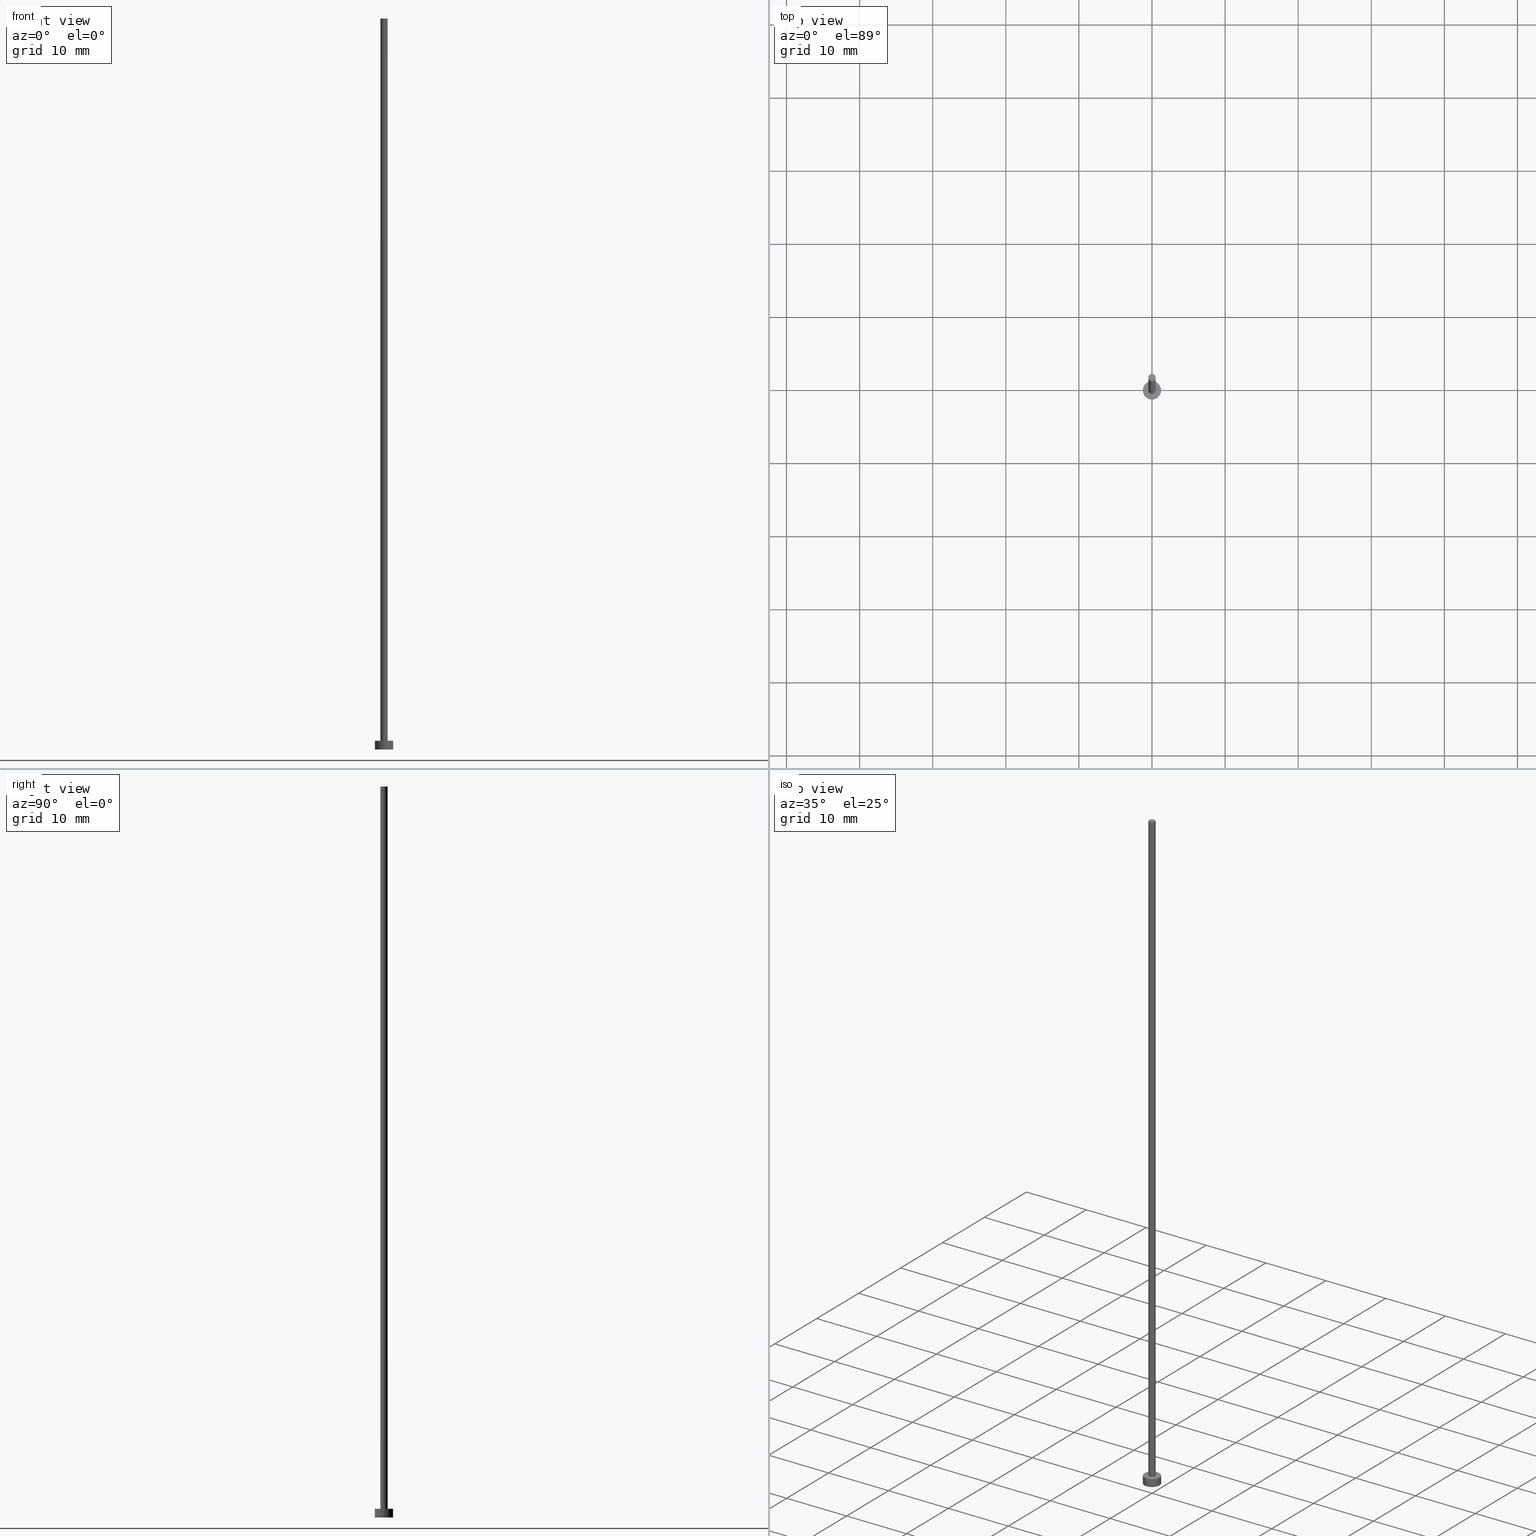
[diagram: canonical four-view strip — front | top / right | iso, engineering-drawing reading convention]
A machine part, canonical four-view strip (front | top / right | iso — engineering-drawing reading convention). The complete STEP part file that produces these views, byte-faithful:
ISO-10303-21;
HEADER;
FILE_DESCRIPTION (( 'STEP AP203' ),
    '1' );
FILE_NAME ('36e0.STEP',
    '2024-10-18T10:26:45',
    ( '' ),
    ( '' ),
    'SwSTEP 2.0',
    'SolidWorks 2019',
    '' );
FILE_SCHEMA (( 'CONFIG_CONTROL_DESIGN' ));
ENDSEC;

DATA;
#1 = PRODUCT_DEFINITION_FORMATION_WITH_SPECIFIED_SOURCE ( 'LIBOVOLN�', '', #137, .NOT_KNOWN. ) ;
#2 = CARTESIAN_POINT ( 'NONE',  ( 0.000000000000000000, 0.000000000000000000, 1.199999999999999956 ) ) ;
#3 = LINE ( 'NONE', #148, #128 ) ;
#4 = FACE_BOUND ( 'NONE', #58, .T. ) ;
#5 = CARTESIAN_POINT ( 'NONE',  ( 1.250000000000000000, 1.530808498934191571E-16, 0.000000000000000000 ) ) ;
#6 = EDGE_CURVE ( 'NONE', #139, #159, #33, .T. ) ;
#7 = VERTEX_POINT ( 'NONE', #100 ) ;
#8 = VECTOR ( 'NONE', #64, 1000.000000000000000 ) ;
#9 = PERSON_AND_ORGANIZATION ( #147, #87 ) ;
#10 = COORDINATED_UNIVERSAL_TIME_OFFSET ( 1, 0, .AHEAD. ) ;
#11 = ORIENTED_EDGE ( 'NONE', *, *, #22, .F. ) ;
#12 = PLANE ( 'NONE',  #86 ) ;
#13 = ADVANCED_FACE ( 'NONE', ( #199 ), #12, .T. ) ;
#14 = CARTESIAN_POINT ( 'NONE',  ( 0.000000000000000000, 0.000000000000000000, 0.000000000000000000 ) ) ;
#15 = DIRECTION ( 'NONE',  ( -0.000000000000000000, -0.000000000000000000, -1.000000000000000000 ) ) ;
#16 = APPROVAL ( #249, 'NEUR�EN�' ) ;
#17 = ORIENTED_EDGE ( 'NONE', *, *, #110, .T. ) ;
#18 = AXIS2_PLACEMENT_3D ( 'NONE', #179, #200, #253 ) ;
#19 = CC_DESIGN_APPROVAL ( #121, ( #68 ) ) ;
#20 = CARTESIAN_POINT ( 'NONE',  ( -1.250000000000000000, 0.000000000000000000, 1.199999999999999956 ) ) ;
#21 = DIRECTION ( 'NONE',  ( -0.000000000000000000, -0.000000000000000000, -1.000000000000000000 ) ) ;
#22 = EDGE_CURVE ( 'NONE', #115, #7, #194, .T. ) ;
#23 =( NAMED_UNIT ( * ) SI_UNIT ( $, .STERADIAN. ) SOLID_ANGLE_UNIT ( ) );
#24 = CC_DESIGN_DATE_AND_TIME_ASSIGNMENT ( #211, #126, ( #65 ) ) ;
#25 = ORIENTED_EDGE ( 'NONE', *, *, #174, .T. ) ;
#26 = DATE_AND_TIME ( #70, #214 ) ;
#27 = CALENDAR_DATE ( 2024, 18, 10 ) ;
#28 = DIRECTION ( 'NONE',  ( 0.000000000000000000, 0.000000000000000000, 1.000000000000000000 ) ) ;
#29 = ORIENTED_EDGE ( 'NONE', *, *, #238, .F. ) ;
#30 = LOCAL_TIME ( 12, 26, 45.00000000000000000, #109 ) ;
#31 = PLANE ( 'NONE',  #143 ) ;
#32 = CARTESIAN_POINT ( 'NONE',  ( 0.000000000000000000, 0.000000000000000000, 1.199999999999999956 ) ) ;
#33 = CIRCLE ( 'NONE', #78, 0.5000000000000000000 ) ;
#34 = DIRECTION ( 'NONE',  ( 0.000000000000000000, 0.000000000000000000, 1.000000000000000000 ) ) ;
#35 = EDGE_LOOP ( 'NONE', ( #201, #17 ) ) ;
#36 = LINE ( 'NONE', #20, #185 ) ;
#37 = DIRECTION ( 'NONE',  ( 1.000000000000000000, 0.000000000000000000, 0.000000000000000000 ) ) ;
#38 = AXIS2_PLACEMENT_3D ( 'NONE', #14, #162, #235 ) ;
#39 = CARTESIAN_POINT ( 'NONE',  ( 0.5000000000000000000, 6.123233995736766036E-17, 100.0000000000000000 ) ) ;
#40 = ADVANCED_FACE ( 'NONE', ( #75 ), #31, .F. ) ;
#41 = FACE_OUTER_BOUND ( 'NONE', #135, .T. ) ;
#42 = DIRECTION ( 'NONE',  ( 0.000000000000000000, 0.000000000000000000, 1.000000000000000000 ) ) ;
#43 = CC_DESIGN_DATE_AND_TIME_ASSIGNMENT ( #26, #50, ( #68 ) ) ;
#44 = DIRECTION ( 'NONE',  ( 1.000000000000000000, 0.000000000000000000, 0.000000000000000000 ) ) ;
#45 = APPROVAL_ROLE ( '' ) ;
#46 = PERSON_AND_ORGANIZATION_ROLE ( 'classification_officer' ) ;
#47 = CLOSED_SHELL ( 'NONE', ( #230, #252, #63, #197, #40, #71, #13 ) ) ;
#48 = DATE_AND_TIME ( #66, #133 ) ;
#49 = EDGE_CURVE ( 'NONE', #234, #134, #67, .T. ) ;
#50 = DATE_TIME_ROLE ( 'classification_date' ) ;
#51 = ORIENTED_EDGE ( 'NONE', *, *, #238, .T. ) ;
#52 = CC_DESIGN_PERSON_AND_ORGANIZATION_ASSIGNMENT ( #90, #193, ( #137 ) ) ;
#53 = AXIS2_PLACEMENT_3D ( 'NONE', #163, #60, #141 ) ;
#54 = VERTEX_POINT ( 'NONE', #97 ) ;
#55 = ORIENTED_EDGE ( 'NONE', *, *, #136, .F. ) ;
#56 = PRODUCT_DEFINITION_SHAPE ( 'NONE', 'NONE',  #65 ) ;
#57 = FACE_OUTER_BOUND ( 'NONE', #131, .T. ) ;
#58 = EDGE_LOOP ( 'NONE', ( #236, #198 ) ) ;
#59 = APPLICATION_PROTOCOL_DEFINITION ( 'international standard', 'config_control_design', 1994, #130 ) ;
#60 = DIRECTION ( 'NONE',  ( 0.000000000000000000, 0.000000000000000000, 1.000000000000000000 ) ) ;
#61 = CARTESIAN_POINT ( 'NONE',  ( 0.000000000000000000, 0.000000000000000000, 1.199999999999999956 ) ) ;
#62 = CIRCLE ( 'NONE', #189, 0.5000000000000000000 ) ;
#63 = ADVANCED_FACE ( 'NONE', ( #215 ), #116, .T. ) ;
#64 = DIRECTION ( 'NONE',  ( -0.000000000000000000, -0.000000000000000000, -1.000000000000000000 ) ) ;
#65 = PRODUCT_DEFINITION ( 'NEZN�M�', '', #1, #239 ) ;
#66 = CALENDAR_DATE ( 2024, 18, 10 ) ;
#67 = CIRCLE ( 'NONE', #38, 1.250000000000000000 ) ;
#68 = SECURITY_CLASSIFICATION ( '', '', #69 ) ;
#69 = SECURITY_CLASSIFICATION_LEVEL ( 'unclassified' ) ;
#70 = CALENDAR_DATE ( 2024, 18, 10 ) ;
#71 = ADVANCED_FACE ( 'NONE', ( #57 ), #138, .T. ) ;
#72 = CIRCLE ( 'NONE', #218, 1.250000000000000000 ) ;
#73 = COORDINATED_UNIVERSAL_TIME_OFFSET ( 1, 0, .AHEAD. ) ;
#74 = DIRECTION ( 'NONE',  ( 0.000000000000000000, 0.000000000000000000, 1.000000000000000000 ) ) ;
#75 = FACE_OUTER_BOUND ( 'NONE', #251, .T. ) ;
#76 = DIRECTION ( 'NONE',  ( -0.000000000000000000, -0.000000000000000000, -1.000000000000000000 ) ) ;
#77 = ORIENTED_EDGE ( 'NONE', *, *, #49, .T. ) ;
#78 = AXIS2_PLACEMENT_3D ( 'NONE', #32, #79, #202 ) ;
#79 = DIRECTION ( 'NONE',  ( 0.000000000000000000, 0.000000000000000000, 1.000000000000000000 ) ) ;
#80 = CC_DESIGN_APPROVAL ( #16, ( #65 ) ) ;
#81 = DIRECTION ( 'NONE',  ( 0.000000000000000000, 0.000000000000000000, 1.000000000000000000 ) ) ;
#82 = MANIFOLD_SOLID_BREP ( 'P�idat vysunut�m3', #47 ) ;
#83 = FACE_OUTER_BOUND ( 'NONE', #188, .T. ) ;
#84 = DIRECTION ( 'NONE',  ( -0.000000000000000000, -0.000000000000000000, -1.000000000000000000 ) ) ;
#85 = ORIENTED_EDGE ( 'NONE', *, *, #192, .T. ) ;
#86 = AXIS2_PLACEMENT_3D ( 'NONE', #175, #74, #156 ) ;
#87 = ORGANIZATION ( 'NEUR�EN�', 'NEUR�EN�', '' ) ;
#88 = PERSON_AND_ORGANIZATION ( #147, #87 ) ;
#89 = PERSON_AND_ORGANIZATION_ROLE ( 'design_supplier' ) ;
#90 = PERSON_AND_ORGANIZATION ( #147, #87 ) ;
#91 = CC_DESIGN_PERSON_AND_ORGANIZATION_ASSIGNMENT ( #168, #46, ( #68 ) ) ;
#92 = COORDINATED_UNIVERSAL_TIME_OFFSET ( 1, 0, .AHEAD. ) ;
#93 = APPLICATION_CONTEXT ( 'configuration controlled 3d designs of mechanical parts and assemblies' ) ;
#94 = ORIENTED_EDGE ( 'NONE', *, *, #22, .T. ) ;
#95 = VERTEX_POINT ( 'NONE', #178 ) ;
#96 = CIRCLE ( 'NONE', #164, 0.5000000000000000000 ) ;
#97 = CARTESIAN_POINT ( 'NONE',  ( 0.5000000000000000000, 6.123233995736766036E-17, 100.0000000000000000 ) ) ;
#98 = DIRECTION ( 'NONE',  ( -1.000000000000000000, 0.000000000000000000, 0.000000000000000000 ) ) ;
#99 = ADVANCED_BREP_SHAPE_REPRESENTATION ( '36e0', ( #82, #227 ), #161 ) ;
#100 = CARTESIAN_POINT ( 'NONE',  ( 1.250000000000000000, 1.530808498934191571E-16, 1.199999999999999956 ) ) ;
#101 = AXIS2_PLACEMENT_3D ( 'NONE', #142, #84, #106 ) ;
#102 = DIRECTION ( 'NONE',  ( 0.000000000000000000, 0.000000000000000000, 1.000000000000000000 ) ) ;
#103 = LOCAL_TIME ( 12, 26, 45.00000000000000000, #92 ) ;
#104 = DIRECTION ( 'NONE',  ( 0.000000000000000000, 0.000000000000000000, 1.000000000000000000 ) ) ;
#105 = CARTESIAN_POINT ( 'NONE',  ( 0.000000000000000000, 0.000000000000000000, 1.199999999999999956 ) ) ;
#106 = DIRECTION ( 'NONE',  ( -1.000000000000000000, 0.000000000000000000, 0.000000000000000000 ) ) ;
#107 = DIRECTION ( 'NONE',  ( 1.000000000000000000, 0.000000000000000000, -0.000000000000000000 ) ) ;
#108 = APPROVAL_DATE_TIME ( #153, #16 ) ;
#109 = COORDINATED_UNIVERSAL_TIME_OFFSET ( 1, 0, .AHEAD. ) ;
#110 = EDGE_CURVE ( 'NONE', #54, #95, #62, .T. ) ;
#111 = PERSON_AND_ORGANIZATION ( #147, #87 ) ;
#112 = COORDINATED_UNIVERSAL_TIME_OFFSET ( 1, 0, .AHEAD. ) ;
#113 = AXIS2_PLACEMENT_3D ( 'NONE', #119, #15, #98 ) ;
#114 = APPROVAL_PERSON_ORGANIZATION ( #247, #186, #171 ) ;
#115 = VERTEX_POINT ( 'NONE', #243 ) ;
#116 = CYLINDRICAL_SURFACE ( 'NONE', #226, 1.250000000000000000 ) ;
#117 = ORIENTED_EDGE ( 'NONE', *, *, #118, .T. ) ;
#118 = EDGE_CURVE ( 'NONE', #95, #159, #205, .T. ) ;
#119 = CARTESIAN_POINT ( 'NONE',  ( 0.000000000000000000, 0.000000000000000000, 100.0000000000000000 ) ) ;
#120 = ORIENTED_EDGE ( 'NONE', *, *, #183, .T. ) ;
#121 = APPROVAL ( #190, 'NEUR�EN�' ) ;
#122 = DIRECTION ( 'NONE',  ( -0.000000000000000000, -0.000000000000000000, -1.000000000000000000 ) ) ;
#123 = CARTESIAN_POINT ( 'NONE',  ( 0.000000000000000000, 0.000000000000000000, 100.0000000000000000 ) ) ;
#124 =( NAMED_UNIT ( * ) PLANE_ANGLE_UNIT ( ) SI_UNIT ( $, .RADIAN. ) );
#125 = CARTESIAN_POINT ( 'NONE',  ( 0.5000000000000000000, 6.123233995736766036E-17, 1.199999999999999956 ) ) ;
#126 = DATE_TIME_ROLE ( 'creation_date' ) ;
#127 = APPROVAL_ROLE ( '' ) ;
#128 = VECTOR ( 'NONE', #221, 1000.000000000000000 ) ;
#129 = CARTESIAN_POINT ( 'NONE',  ( 0.000000000000000000, 0.000000000000000000, 0.000000000000000000 ) ) ;
#130 = APPLICATION_CONTEXT ( 'configuration controlled 3d designs of mechanical parts and assemblies' ) ;
#131 = EDGE_LOOP ( 'NONE', ( #55, #176, #117, #120 ) ) ;
#132 = AXIS2_PLACEMENT_3D ( 'NONE', #61, #206, #107 ) ;
#133 = LOCAL_TIME ( 12, 26, 45.00000000000000000, #10 ) ;
#134 = VERTEX_POINT ( 'NONE', #5 ) ;
#135 = EDGE_LOOP ( 'NONE', ( #213, #51, #85, #217 ) ) ;
#136 = EDGE_CURVE ( 'NONE', #54, #139, #242, .T. ) ;
#137 = PRODUCT ( '36e0', '36e0', '', ( #155 ) ) ;
#138 = CYLINDRICAL_SURFACE ( 'NONE', #113, 0.5000000000000000000 ) ;
#139 = VERTEX_POINT ( 'NONE', #125 ) ;
#140 = CC_DESIGN_PERSON_AND_ORGANIZATION_ASSIGNMENT ( #9, #231, ( #1 ) ) ;
#141 = DIRECTION ( 'NONE',  ( 1.000000000000000000, 0.000000000000000000, 0.000000000000000000 ) ) ;
#142 = CARTESIAN_POINT ( 'NONE',  ( 0.000000000000000000, 0.000000000000000000, 100.0000000000000000 ) ) ;
#143 = AXIS2_PLACEMENT_3D ( 'NONE', #160, #34, #158 ) ;
#144 = CARTESIAN_POINT ( 'NONE',  ( -0.5000000000000000000, 0.000000000000000000, 100.0000000000000000 ) ) ;
#145 =( LENGTH_UNIT ( ) NAMED_UNIT ( * ) SI_UNIT ( .MILLI., .METRE. ) );
#146 = EDGE_CURVE ( 'NONE', #7, #115, #222, .T. ) ;
#147 = PERSON ( 'NEUR�EN�', 'NEUR�EN�', 'NEUR�EN�', ('NEUR�EN�'), ('NEUR�EN�'), ('NEUR�EN�') ) ;
#148 = CARTESIAN_POINT ( 'NONE',  ( 1.250000000000000000, 1.530808498934191571E-16, 1.199999999999999956 ) ) ;
#149 = UNCERTAINTY_MEASURE_WITH_UNIT (LENGTH_MEASURE( 1.000000000000000082E-05 ), #145, 'distance_accuracy_value', 'NONE');
#150 = VECTOR ( 'NONE', #181, 1000.000000000000000 ) ;
#151 = APPROVAL_DATE_TIME ( #228, #186 ) ;
#152 = CC_DESIGN_APPROVAL ( #186, ( #1 ) ) ;
#153 = DATE_AND_TIME ( #27, #196 ) ;
#154 = APPLICATION_PROTOCOL_DEFINITION ( 'international standard', 'config_control_design', 1994, #93 ) ;
#155 = MECHANICAL_CONTEXT ( 'NONE', #130, 'mechanical' ) ;
#156 = DIRECTION ( 'NONE',  ( 1.000000000000000000, 0.000000000000000000, -0.000000000000000000 ) ) ;
#157 = CIRCLE ( 'NONE', #53, 0.5000000000000000000 ) ;
#158 = DIRECTION ( 'NONE',  ( 1.000000000000000000, 0.000000000000000000, -0.000000000000000000 ) ) ;
#159 = VERTEX_POINT ( 'NONE', #187 ) ;
#160 = CARTESIAN_POINT ( 'NONE',  ( 0.000000000000000000, 0.000000000000000000, 0.000000000000000000 ) ) ;
#161 =( GEOMETRIC_REPRESENTATION_CONTEXT ( 3 ) GLOBAL_UNCERTAINTY_ASSIGNED_CONTEXT ( ( #149 ) ) GLOBAL_UNIT_ASSIGNED_CONTEXT ( ( #145, #124, #23 ) ) REPRESENTATION_CONTEXT ( 'NONE', 'WORKASPACE' ) );
#162 = DIRECTION ( 'NONE',  ( 0.000000000000000000, 0.000000000000000000, 1.000000000000000000 ) ) ;
#163 = CARTESIAN_POINT ( 'NONE',  ( 0.000000000000000000, 0.000000000000000000, 100.0000000000000000 ) ) ;
#164 = AXIS2_PLACEMENT_3D ( 'NONE', #105, #42, #223 ) ;
#165 = CARTESIAN_POINT ( 'NONE',  ( 0.000000000000000000, 0.000000000000000000, 0.000000000000000000 ) ) ;
#166 = CARTESIAN_POINT ( 'NONE',  ( -1.250000000000000000, 0.000000000000000000, 0.000000000000000000 ) ) ;
#167 = CC_DESIGN_PERSON_AND_ORGANIZATION_ASSIGNMENT ( #173, #89, ( #1 ) ) ;
#168 = PERSON_AND_ORGANIZATION ( #147, #87 ) ;
#169 = ORIENTED_EDGE ( 'NONE', *, *, #146, .T. ) ;
#170 = CC_DESIGN_SECURITY_CLASSIFICATION ( #68, ( #1 ) ) ;
#171 = APPROVAL_ROLE ( '' ) ;
#172 = PERSON_AND_ORGANIZATION ( #147, #87 ) ;
#173 = PERSON_AND_ORGANIZATION ( #147, #87 ) ;
#174 = EDGE_CURVE ( 'NONE', #115, #234, #36, .T. ) ;
#175 = CARTESIAN_POINT ( 'NONE',  ( 0.000000000000000000, 0.000000000000000000, 100.0000000000000000 ) ) ;
#176 = ORIENTED_EDGE ( 'NONE', *, *, #210, .F. ) ;
#177 = CARTESIAN_POINT ( 'NONE',  ( 0.000000000000000000, 0.000000000000000000, 1.199999999999999956 ) ) ;
#178 = CARTESIAN_POINT ( 'NONE',  ( -0.5000000000000000000, 0.000000000000000000, 100.0000000000000000 ) ) ;
#179 = CARTESIAN_POINT ( 'NONE',  ( 0.000000000000000000, 0.000000000000000000, 1.199999999999999956 ) ) ;
#180 = APPROVAL_PERSON_ORGANIZATION ( #88, #16, #45 ) ;
#181 = DIRECTION ( 'NONE',  ( -0.000000000000000000, -0.000000000000000000, -1.000000000000000000 ) ) ;
#182 = PLANE ( 'NONE',  #132 ) ;
#183 = EDGE_CURVE ( 'NONE', #159, #139, #96, .T. ) ;
#184 = FACE_OUTER_BOUND ( 'NONE', #241, .T. ) ;
#185 = VECTOR ( 'NONE', #21, 1000.000000000000000 ) ;
#186 = APPROVAL ( #232, 'NEUR�EN�' ) ;
#187 = CARTESIAN_POINT ( 'NONE',  ( -0.5000000000000000000, 0.000000000000000000, 1.199999999999999956 ) ) ;
#188 = EDGE_LOOP ( 'NONE', ( #94, #169 ) ) ;
#189 = AXIS2_PLACEMENT_3D ( 'NONE', #123, #102, #220 ) ;
#190 = APPROVAL_STATUS ( 'not_yet_approved' ) ;
#191 = APPROVAL_DATE_TIME ( #48, #121 ) ;
#192 = EDGE_CURVE ( 'NONE', #134, #234, #72, .T. ) ;
#193 = PERSON_AND_ORGANIZATION_ROLE ( 'design_owner' ) ;
#194 = CIRCLE ( 'NONE', #18, 1.250000000000000000 ) ;
#195 = ORIENTED_EDGE ( 'NONE', *, *, #6, .T. ) ;
#196 = LOCAL_TIME ( 12, 26, 45.00000000000000000, #73 ) ;
#197 = ADVANCED_FACE ( 'NONE', ( #4, #83 ), #182, .T. ) ;
#198 = ORIENTED_EDGE ( 'NONE', *, *, #6, .F. ) ;
#199 = FACE_OUTER_BOUND ( 'NONE', #35, .T. ) ;
#200 = DIRECTION ( 'NONE',  ( 0.000000000000000000, 0.000000000000000000, 1.000000000000000000 ) ) ;
#201 = ORIENTED_EDGE ( 'NONE', *, *, #210, .T. ) ;
#202 = DIRECTION ( 'NONE',  ( 1.000000000000000000, 0.000000000000000000, 0.000000000000000000 ) ) ;
#203 = DIRECTION ( 'NONE',  ( 1.000000000000000000, 0.000000000000000000, 0.000000000000000000 ) ) ;
#204 = CARTESIAN_POINT ( 'NONE',  ( 0.000000000000000000, 0.000000000000000000, 1.199999999999999956 ) ) ;
#205 = LINE ( 'NONE', #144, #150 ) ;
#206 = DIRECTION ( 'NONE',  ( 0.000000000000000000, 0.000000000000000000, 1.000000000000000000 ) ) ;
#207 = PERSON_AND_ORGANIZATION_ROLE ( 'creator' ) ;
#208 = CALENDAR_DATE ( 2024, 18, 10 ) ;
#209 = AXIS2_PLACEMENT_3D ( 'NONE', #204, #81, #37 ) ;
#210 = EDGE_CURVE ( 'NONE', #95, #54, #157, .T. ) ;
#211 = DATE_AND_TIME ( #229, #30 ) ;
#212 = PRODUCT_RELATED_PRODUCT_CATEGORY ( 'detail', '', ( #137 ) ) ;
#213 = ORIENTED_EDGE ( 'NONE', *, *, #146, .F. ) ;
#214 = LOCAL_TIME ( 12, 26, 45.00000000000000000, #112 ) ;
#215 = FACE_OUTER_BOUND ( 'NONE', #240, .T. ) ;
#216 = ORIENTED_EDGE ( 'NONE', *, *, #110, .F. ) ;
#217 = ORIENTED_EDGE ( 'NONE', *, *, #174, .F. ) ;
#218 = AXIS2_PLACEMENT_3D ( 'NONE', #165, #104, #203 ) ;
#219 = ORIENTED_EDGE ( 'NONE', *, *, #49, .F. ) ;
#220 = DIRECTION ( 'NONE',  ( 1.000000000000000000, 0.000000000000000000, 0.000000000000000000 ) ) ;
#221 = DIRECTION ( 'NONE',  ( -0.000000000000000000, -0.000000000000000000, -1.000000000000000000 ) ) ;
#222 = CIRCLE ( 'NONE', #209, 1.250000000000000000 ) ;
#223 = DIRECTION ( 'NONE',  ( 1.000000000000000000, 0.000000000000000000, 0.000000000000000000 ) ) ;
#224 = CYLINDRICAL_SURFACE ( 'NONE', #101, 0.5000000000000000000 ) ;
#225 = DIRECTION ( 'NONE',  ( -1.000000000000000000, 0.000000000000000000, 0.000000000000000000 ) ) ;
#226 = AXIS2_PLACEMENT_3D ( 'NONE', #177, #76, #237 ) ;
#227 = AXIS2_PLACEMENT_3D ( 'NONE', #129, #28, #44 ) ;
#228 = DATE_AND_TIME ( #208, #103 ) ;
#229 = CALENDAR_DATE ( 2024, 18, 10 ) ;
#230 = ADVANCED_FACE ( 'NONE', ( #184 ), #224, .T. ) ;
#231 = PERSON_AND_ORGANIZATION_ROLE ( 'creator' ) ;
#232 = APPROVAL_STATUS ( 'not_yet_approved' ) ;
#233 = CC_DESIGN_PERSON_AND_ORGANIZATION_ASSIGNMENT ( #111, #207, ( #65 ) ) ;
#234 = VERTEX_POINT ( 'NONE', #166 ) ;
#235 = DIRECTION ( 'NONE',  ( 1.000000000000000000, 0.000000000000000000, 0.000000000000000000 ) ) ;
#236 = ORIENTED_EDGE ( 'NONE', *, *, #183, .F. ) ;
#237 = DIRECTION ( 'NONE',  ( -1.000000000000000000, 0.000000000000000000, 0.000000000000000000 ) ) ;
#238 = EDGE_CURVE ( 'NONE', #7, #134, #3, .T. ) ;
#239 = DESIGN_CONTEXT ( 'detailed design', #93, 'design' ) ;
#240 = EDGE_LOOP ( 'NONE', ( #29, #11, #25, #77 ) ) ;
#241 = EDGE_LOOP ( 'NONE', ( #216, #254, #195, #250 ) ) ;
#242 = LINE ( 'NONE', #39, #8 ) ;
#243 = CARTESIAN_POINT ( 'NONE',  ( -1.250000000000000000, 0.000000000000000000, 1.199999999999999956 ) ) ;
#244 = CYLINDRICAL_SURFACE ( 'NONE', #246, 1.250000000000000000 ) ;
#245 = SHAPE_DEFINITION_REPRESENTATION ( #56, #99 ) ;
#246 = AXIS2_PLACEMENT_3D ( 'NONE', #2, #122, #225 ) ;
#247 = PERSON_AND_ORGANIZATION ( #147, #87 ) ;
#248 = APPROVAL_PERSON_ORGANIZATION ( #172, #121, #127 ) ;
#249 = APPROVAL_STATUS ( 'not_yet_approved' ) ;
#250 = ORIENTED_EDGE ( 'NONE', *, *, #118, .F. ) ;
#251 = EDGE_LOOP ( 'NONE', ( #219, #255 ) ) ;
#252 = ADVANCED_FACE ( 'NONE', ( #41 ), #244, .T. ) ;
#253 = DIRECTION ( 'NONE',  ( 1.000000000000000000, 0.000000000000000000, 0.000000000000000000 ) ) ;
#254 = ORIENTED_EDGE ( 'NONE', *, *, #136, .T. ) ;
#255 = ORIENTED_EDGE ( 'NONE', *, *, #192, .F. ) ;
ENDSEC;
END-ISO-10303-21;
